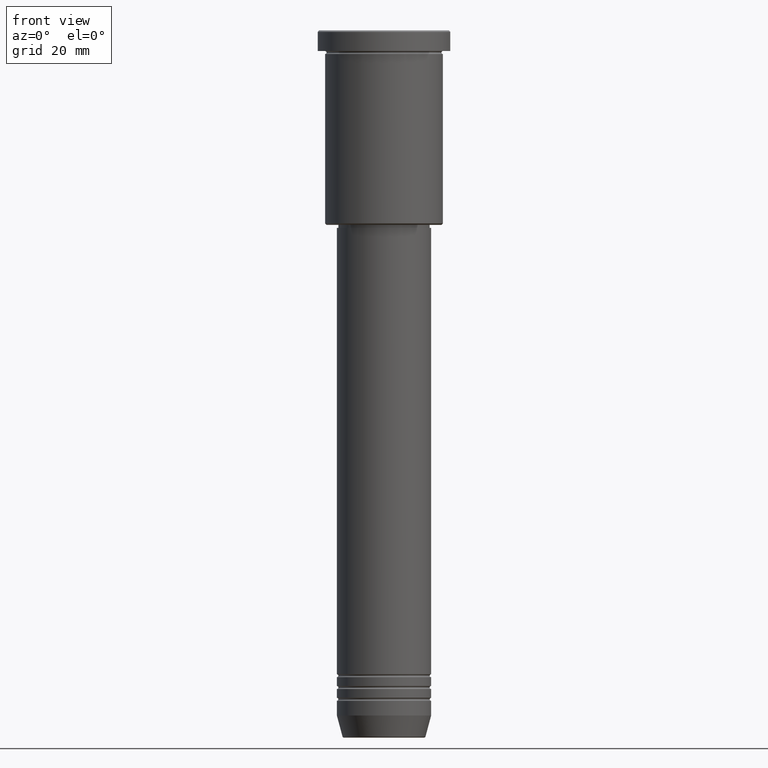
[diagram: clean part render]
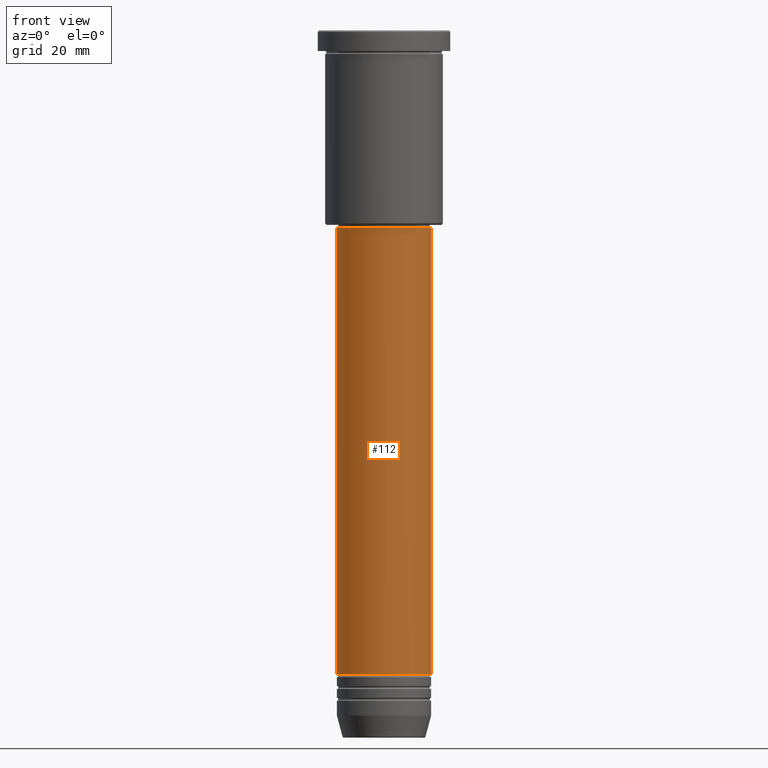
[diagram: same view with one face highlighted and labeled with its STEP entity id]
A machine part, front view. The second image highlights one B-rep face of the part: STEP entity #112.
In plain terms, the highlighted cylindrical surface (partial cylindrical patch) has radius 16 mm, axis along (-0, -0, 1).
Its self-contained STEP definition (entity closure, byte-faithful):
#49 = CARTESIAN_POINT ( 'NONE',  ( 0.000000000000000000, 0.000000000000000000, -218.5000000000000000 ) ) ;
#71 = AXIS2_PLACEMENT_3D ( 'NONE', #449, #184, #906 ) ;
#112 = ADVANCED_FACE ( 'NONE', ( #910 ), #748, .T. ) ;
#132 = CARTESIAN_POINT ( 'NONE',  ( 16.00000000000000000, 0.000000000000000000, -218.5000000000000000 ) ) ;
#145 = DIRECTION ( 'NONE',  ( -0.000000000000000000, -0.000000000000000000, 1.000000000000000000 ) ) ;
#173 = DIRECTION ( 'NONE',  ( 1.000000000000000000, 0.000000000000000000, 0.000000000000000000 ) ) ;
#184 = DIRECTION ( 'NONE',  ( -0.000000000000000000, -0.000000000000000000, 1.000000000000000000 ) ) ;
#190 = AXIS2_PLACEMENT_3D ( 'NONE', #976, #824, #173 ) ;
#221 = ORIENTED_EDGE ( 'NONE', *, *, #1125, .T. ) ;
#241 = VERTEX_POINT ( 'NONE', #132 ) ;
#253 = CARTESIAN_POINT ( 'NONE',  ( 16.00000000000000000, 0.000000000000000000, -67.00000000000002842 ) ) ;
#263 = VERTEX_POINT ( 'NONE', #944 ) ;
#291 = EDGE_CURVE ( 'NONE', #437, #926, #588, .T. ) ;
#356 = VECTOR ( 'NONE', #664, 1000.000000000000000 ) ;
#437 = VERTEX_POINT ( 'NONE', #450 ) ;
#449 = CARTESIAN_POINT ( 'NONE',  ( 0.000000000000000000, 0.000000000000000000, 0.000000000000000000 ) ) ;
#450 = CARTESIAN_POINT ( 'NONE',  ( -16.00000000000000000, 1.959434878635765131E-15, -67.00000000000002842 ) ) ;
#502 = LINE ( 'NONE', #1025, #356 ) ;
#576 = ORIENTED_EDGE ( 'NONE', *, *, #597, .F. ) ;
#588 = CIRCLE ( 'NONE', #190, 16.00000000000000000 ) ;
#594 = ORIENTED_EDGE ( 'NONE', *, *, #291, .F. ) ;
#597 = EDGE_CURVE ( 'NONE', #263, #437, #502, .T. ) ;
#664 = DIRECTION ( 'NONE',  ( -0.000000000000000000, -0.000000000000000000, 1.000000000000000000 ) ) ;
#689 = LINE ( 'NONE', #695, #921 ) ;
#695 = CARTESIAN_POINT ( 'NONE',  ( 16.00000000000000000, 0.000000000000000000, 0.000000000000000000 ) ) ;
#703 = EDGE_CURVE ( 'NONE', #263, #241, #1070, .T. ) ;
#748 = CYLINDRICAL_SURFACE ( 'NONE', #71, 16.00000000000000000 ) ;
#799 = AXIS2_PLACEMENT_3D ( 'NONE', #49, #145, #1091 ) ;
#824 = DIRECTION ( 'NONE',  ( -0.000000000000000000, -0.000000000000000000, 1.000000000000000000 ) ) ;
#859 = ORIENTED_EDGE ( 'NONE', *, *, #703, .T. ) ;
#906 = DIRECTION ( 'NONE',  ( 1.000000000000000000, 0.000000000000000000, 0.000000000000000000 ) ) ;
#910 = FACE_OUTER_BOUND ( 'NONE', #1038, .T. ) ;
#921 = VECTOR ( 'NONE', #956, 1000.000000000000000 ) ;
#926 = VERTEX_POINT ( 'NONE', #253 ) ;
#944 = CARTESIAN_POINT ( 'NONE',  ( -16.00000000000000000, 1.959434878635765131E-15, -218.5000000000000000 ) ) ;
#956 = DIRECTION ( 'NONE',  ( -0.000000000000000000, -0.000000000000000000, 1.000000000000000000 ) ) ;
#976 = CARTESIAN_POINT ( 'NONE',  ( 0.000000000000000000, 0.000000000000000000, -67.00000000000002842 ) ) ;
#1025 = CARTESIAN_POINT ( 'NONE',  ( -16.00000000000000000, 1.959434878635765131E-15, 0.000000000000000000 ) ) ;
#1038 = EDGE_LOOP ( 'NONE', ( #576, #859, #221, #594 ) ) ;
#1070 = CIRCLE ( 'NONE', #799, 16.00000000000000000 ) ;
#1091 = DIRECTION ( 'NONE',  ( 1.000000000000000000, 0.000000000000000000, 0.000000000000000000 ) ) ;
#1125 = EDGE_CURVE ( 'NONE', #241, #926, #689, .T. ) ;